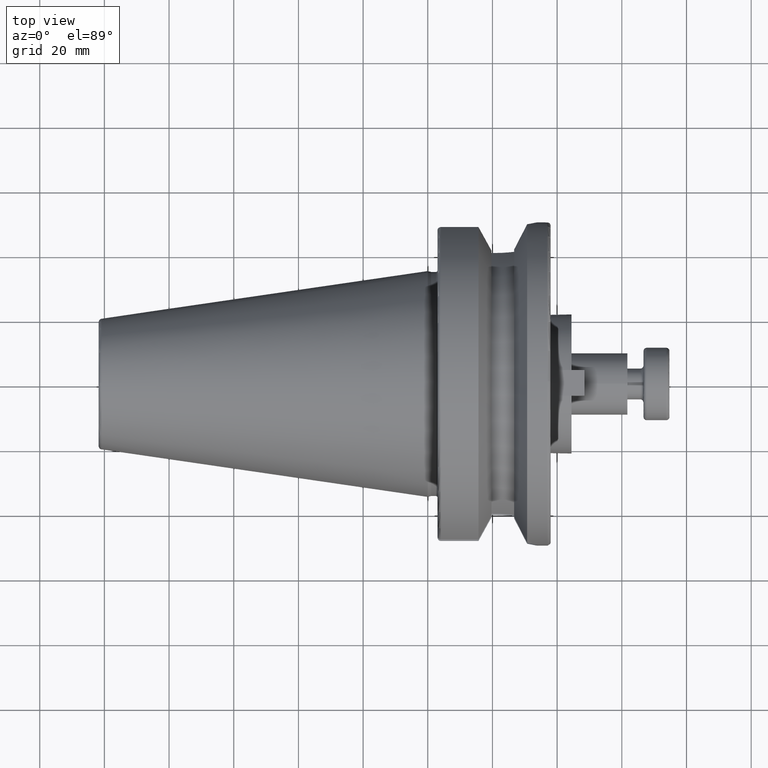
[diagram: clean part render]
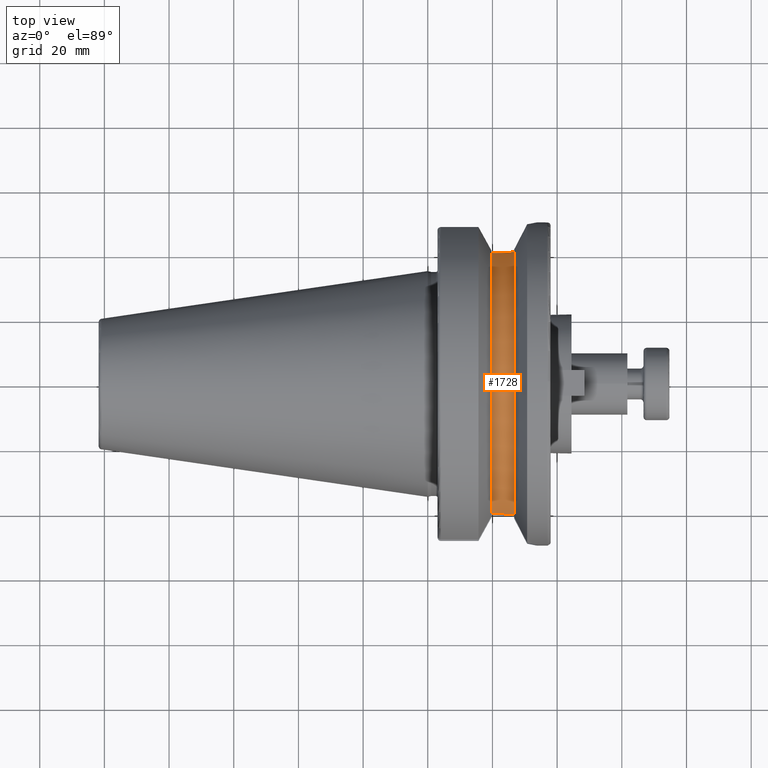
[diagram: same view with one face highlighted and labeled with its STEP entity id]
A machine part, top view. The second image highlights one B-rep face of the part: STEP entity #1728.
In plain terms, the highlighted cylindrical surface (partial cylindrical patch) has radius 42.3 mm, axis along (1, 0, 0).
Its self-contained STEP definition (entity closure, byte-faithful):
#80=B_SPLINE_CURVE_WITH_KNOTS('',3,(#2810,#2811,#2812,#2813,#2814,#2815),
 .UNSPECIFIED.,.F.,.F.,(4,2,4),(0.,0.487461795390416,0.551767586093955),
 .UNSPECIFIED.);
#87=B_SPLINE_CURVE_WITH_KNOTS('',3,(#2952,#2953,#2954,#2955,#2956,#2957),
 .UNSPECIFIED.,.F.,.F.,(4,2,4),(-0.551767586093955,-0.487461795390416,0.),
 .UNSPECIFIED.);
#106=CYLINDRICAL_SURFACE('',#1988,42.3);
#198=CIRCLE('',#1987,42.3);
#199=CIRCLE('',#1989,42.3);
#298=FACE_OUTER_BOUND('',#409,.T.);
#409=EDGE_LOOP('',(#1378,#1379,#1380,#1381,#1382,#1383));
#506=LINE('',#2823,#626);
#525=LINE('',#2968,#645);
#626=VECTOR('',#2233,10.);
#645=VECTOR('',#2300,10.);
#756=VERTEX_POINT('',#2807);
#757=VERTEX_POINT('',#2809);
#760=VERTEX_POINT('',#2822);
#786=VERTEX_POINT('',#2949);
#787=VERTEX_POINT('',#2951);
#789=VERTEX_POINT('',#2967);
#936=EDGE_CURVE('',#757,#756,#80,.T.);
#940=EDGE_CURVE('',#760,#757,#506,.T.);
#979=EDGE_CURVE('',#787,#786,#87,.T.);
#982=EDGE_CURVE('',#786,#789,#525,.T.);
#1010=EDGE_CURVE('',#789,#760,#198,.T.);
#1011=EDGE_CURVE('',#787,#756,#199,.T.);
#1378=ORIENTED_EDGE('',*,*,#936,.T.);
#1379=ORIENTED_EDGE('',*,*,#1011,.F.);
#1380=ORIENTED_EDGE('',*,*,#979,.T.);
#1381=ORIENTED_EDGE('',*,*,#982,.T.);
#1382=ORIENTED_EDGE('',*,*,#1010,.T.);
#1383=ORIENTED_EDGE('',*,*,#940,.T.);
#1728=ADVANCED_FACE('',(#298),#106,.T.);
#1987=AXIS2_PLACEMENT_3D('',#3034,#2367,#2368);
#1988=AXIS2_PLACEMENT_3D('',#3035,#2369,#2370);
#1989=AXIS2_PLACEMENT_3D('',#3036,#2371,#2372);
#2233=DIRECTION('',(1.,0.,0.));
#2300=DIRECTION('',(-1.,0.,0.));
#2367=DIRECTION('center_axis',(1.,0.,0.));
#2368=DIRECTION('ref_axis',(0.,0.,-1.));
#2369=DIRECTION('center_axis',(1.,0.,0.));
#2370=DIRECTION('ref_axis',(0.,1.,0.));
#2371=DIRECTION('center_axis',(1.,0.,0.));
#2372=DIRECTION('ref_axis',(0.,0.,-1.));
#2807=CARTESIAN_POINT('',(26.7,-40.6813224957105,11.5896505555603));
#2809=CARTESIAN_POINT('',(21.15,-40.3009615269909,12.85));
#2810=CARTESIAN_POINT('Ctrl Pts',(21.15,-40.3009615269909,12.85));
#2811=CARTESIAN_POINT('Ctrl Pts',(22.7748726513014,-40.3009615269909,12.85));
#2812=CARTESIAN_POINT('Ctrl Pts',(24.5004394739693,-40.4095209038274,12.523156759676));
#2813=CARTESIAN_POINT('Ctrl Pts',(26.2903327171265,-40.6269325004893,11.7792407740914));
#2814=CARTESIAN_POINT('Ctrl Pts',(26.4965759220475,-40.6535701129615,11.6870653677865));
#2815=CARTESIAN_POINT('Ctrl Pts',(26.7,-40.6813224957105,11.5896505555603));
#2822=CARTESIAN_POINT('',(19.7,-40.3009615269909,12.85));
#2823=CARTESIAN_POINT('',(23.2,-40.3009615269909,12.85));
#2949=CARTESIAN_POINT('',(21.15,40.3009615269909,12.85));
#2951=CARTESIAN_POINT('',(26.7,40.6813224957105,11.5896505555603));
#2952=CARTESIAN_POINT('Ctrl Pts',(26.7,40.6813224957105,11.5896505555603));
#2953=CARTESIAN_POINT('Ctrl Pts',(26.4965759220475,40.6535701129615,11.6870653677865));
#2954=CARTESIAN_POINT('Ctrl Pts',(26.2903327171265,40.6269325004893,11.7792407740914));
#2955=CARTESIAN_POINT('Ctrl Pts',(24.5004394739693,40.4095209038274,12.523156759676));
#2956=CARTESIAN_POINT('Ctrl Pts',(22.7748726513014,40.3009615269909,12.85));
#2957=CARTESIAN_POINT('Ctrl Pts',(21.15,40.3009615269909,12.85));
#2967=CARTESIAN_POINT('',(19.7,40.3009615269909,12.85));
#2968=CARTESIAN_POINT('',(23.2,40.3009615269909,12.85));
#3034=CARTESIAN_POINT('Origin',(19.7,0.,0.));
#3035=CARTESIAN_POINT('Origin',(23.2,0.,0.));
#3036=CARTESIAN_POINT('Origin',(26.7,0.,0.));